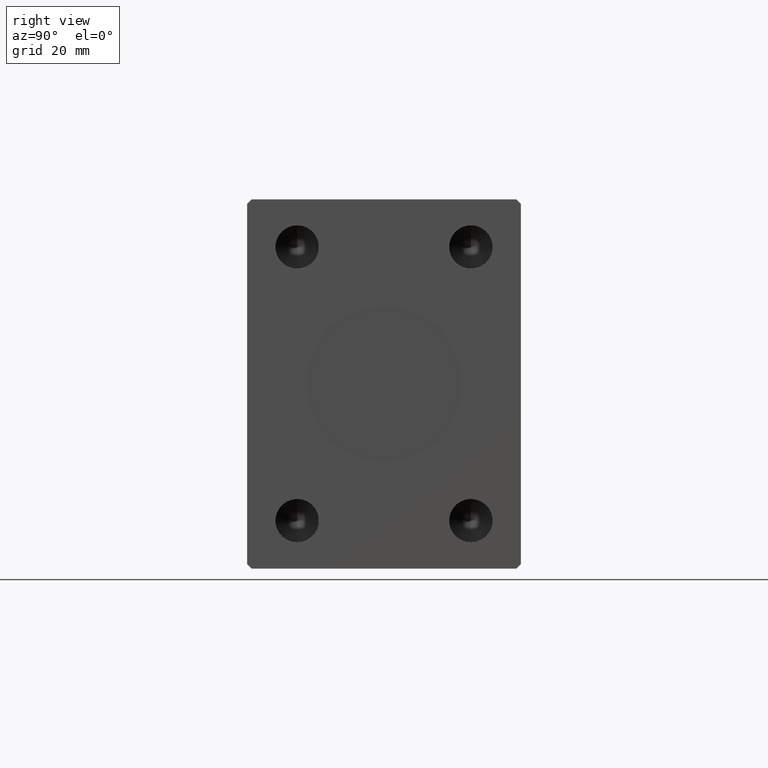
[diagram: clean part render]
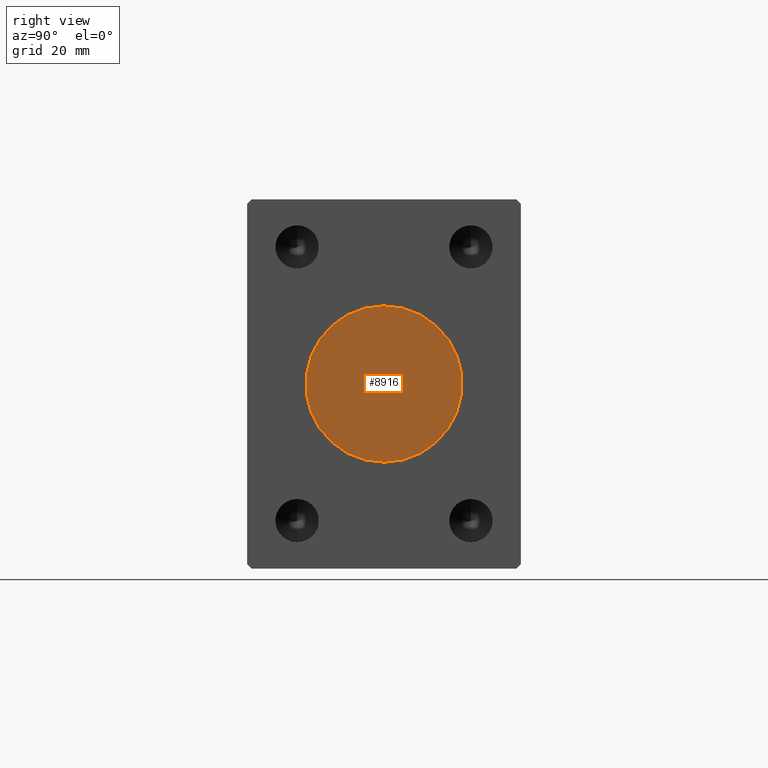
[diagram: same view with one face highlighted and labeled with its STEP entity id]
A machine part, right view. The second image highlights one B-rep face of the part: STEP entity #8916.
In plain terms, the highlighted planar face has unit normal (1, 0, 0).
Its self-contained STEP definition (entity closure, byte-faithful):
#2257 = DIRECTION ( 'NONE',  ( 0.000000000000000000, 0.000000000000000000, -1.000000000000000000 ) ) ;
#2722 = EDGE_CURVE ( 'NONE', #24939, #27373, #24656, .T. ) ;
#2985 = DIRECTION ( 'NONE',  ( 1.000000000000000000, 0.000000000000000000, 0.000000000000000000 ) ) ;
#4563 = EDGE_LOOP ( 'NONE', ( #27311, #12692 ) ) ;
#8916 = ADVANCED_FACE ( 'NONE', ( #16985 ), #14271, .T. ) ;
#12692 = ORIENTED_EDGE ( 'NONE', *, *, #21756, .T. ) ;
#13686 = CARTESIAN_POINT ( 'NONE',  ( 95.79999999999999716, 0.000000000000000000, -18.00000000000000000 ) ) ;
#14271 = PLANE ( 'NONE',  #36911 ) ;
#16985 = FACE_OUTER_BOUND ( 'NONE', #4563, .T. ) ;
#18893 = AXIS2_PLACEMENT_3D ( 'NONE', #19161, #36717, #2257 ) ;
#19161 = CARTESIAN_POINT ( 'NONE',  ( 95.79999999999999716, 0.000000000000000000, 0.000000000000000000 ) ) ;
#21756 = EDGE_CURVE ( 'NONE', #27373, #24939, #30048, .T. ) ;
#24410 = CARTESIAN_POINT ( 'NONE',  ( 95.79999999999999716, 0.000000000000000000, 0.000000000000000000 ) ) ;
#24656 = CIRCLE ( 'NONE', #18893, 18.00000000000000000 ) ;
#24939 = VERTEX_POINT ( 'NONE', #13686 ) ;
#27311 = ORIENTED_EDGE ( 'NONE', *, *, #2722, .T. ) ;
#27373 = VERTEX_POINT ( 'NONE', #43839 ) ;
#30048 = CIRCLE ( 'NONE', #43695, 18.00000000000000000 ) ;
#30708 = DIRECTION ( 'NONE',  ( 1.000000000000000000, 0.000000000000000000, 0.000000000000000000 ) ) ;
#31606 = DIRECTION ( 'NONE',  ( 0.000000000000000000, 0.000000000000000000, -1.000000000000000000 ) ) ;
#33856 = CARTESIAN_POINT ( 'NONE',  ( 95.79999999999999716, 0.000000000000000000, 0.000000000000000000 ) ) ;
#36717 = DIRECTION ( 'NONE',  ( 1.000000000000000000, 0.000000000000000000, 0.000000000000000000 ) ) ;
#36911 = AXIS2_PLACEMENT_3D ( 'NONE', #24410, #30708, #31606 ) ;
#40811 = DIRECTION ( 'NONE',  ( 0.000000000000000000, 0.000000000000000000, -1.000000000000000000 ) ) ;
#43695 = AXIS2_PLACEMENT_3D ( 'NONE', #33856, #2985, #40811 ) ;
#43839 = CARTESIAN_POINT ( 'NONE',  ( 95.79999999999999716, 2.204364238465235428E-15, 18.00000000000000000 ) ) ;